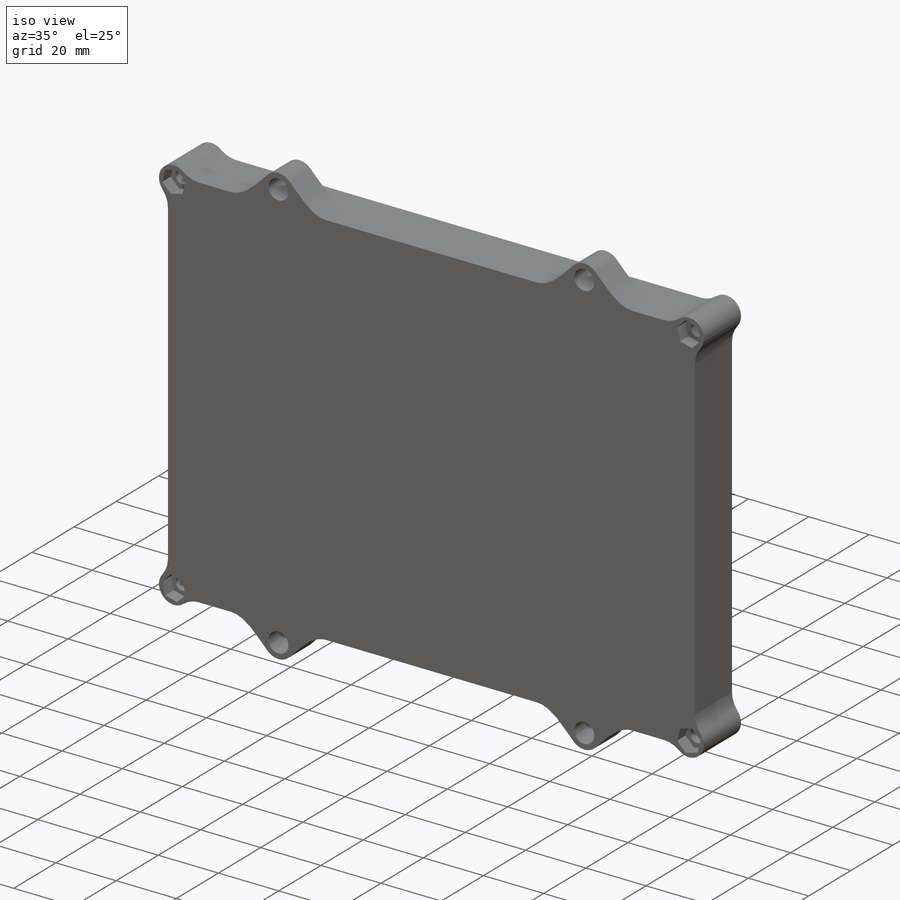
[diagram: iso view]
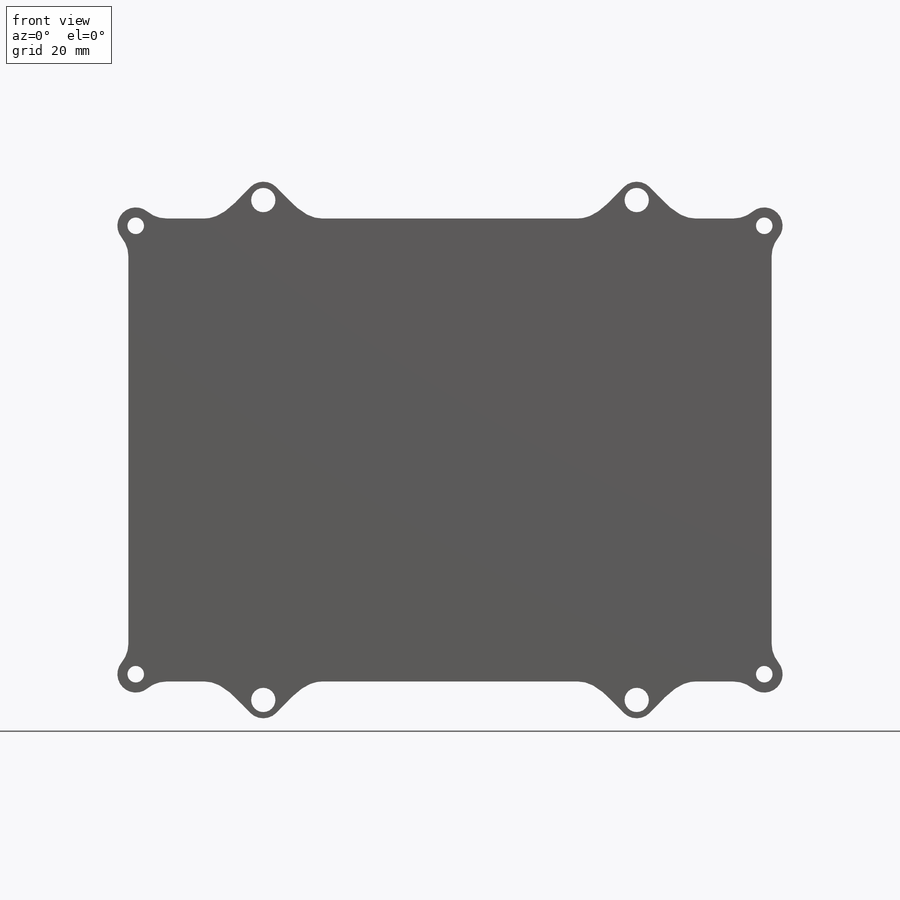
[diagram: front view]
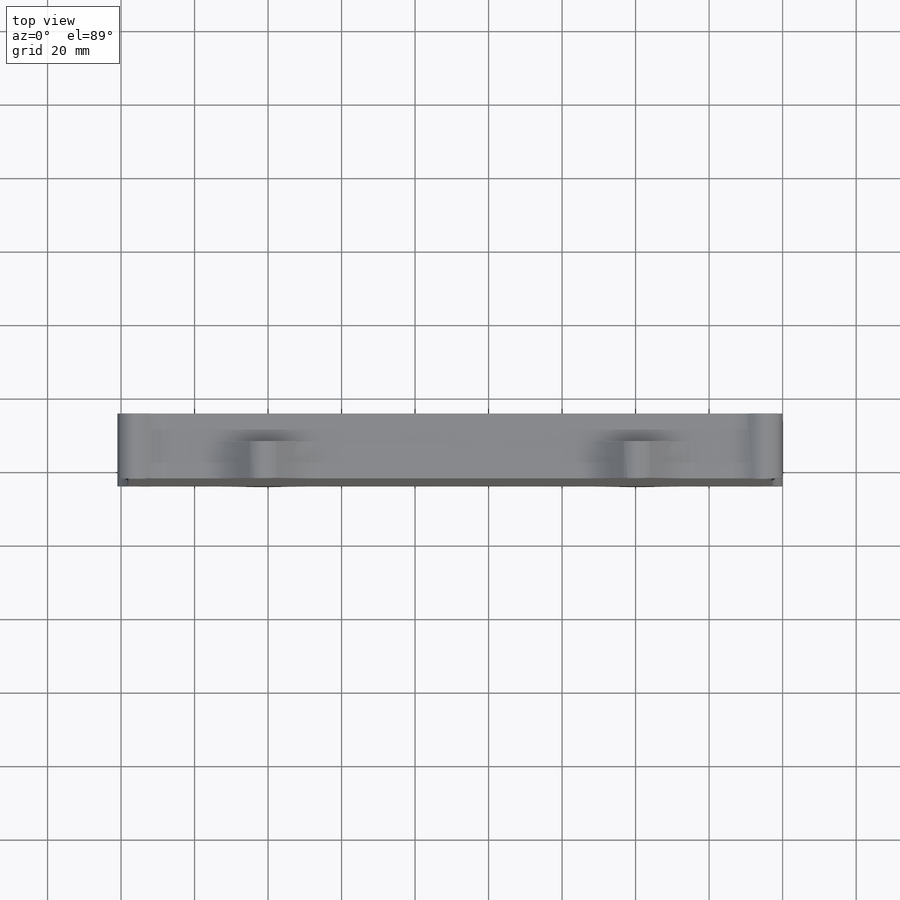
[diagram: top view]
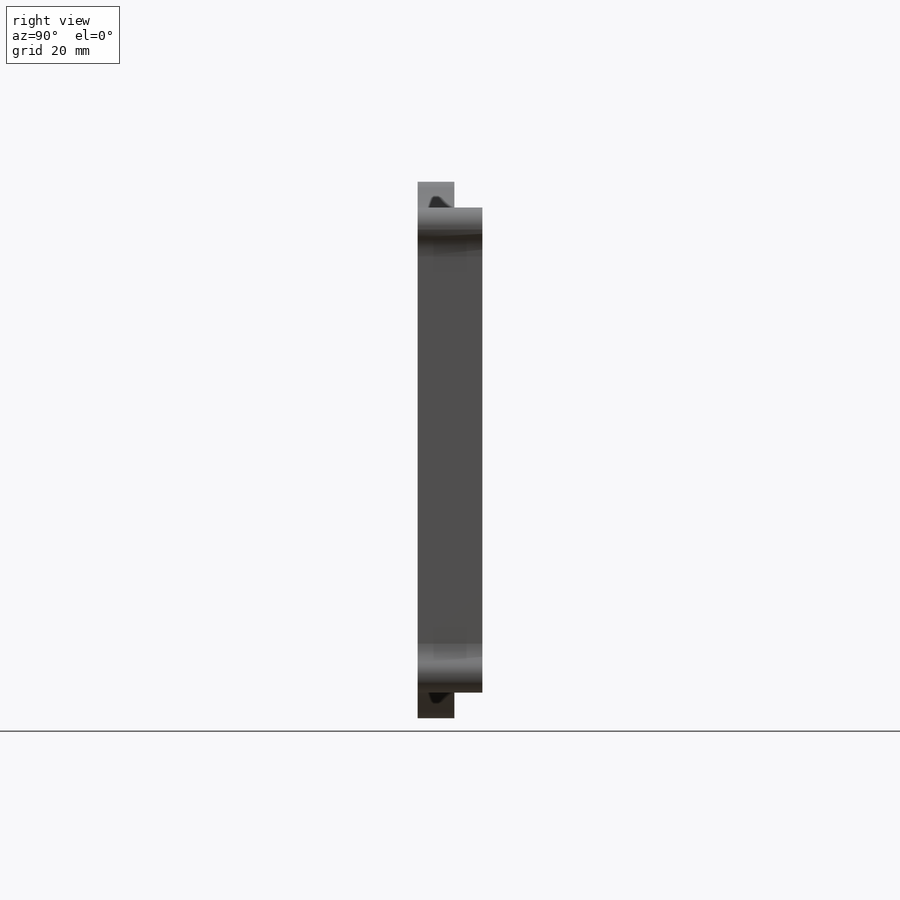
[diagram: right view]
SOLIDWORKS PART (.sldprt)
format: sldprt  version: not decoded by parser v0  size: 556,032 bytes
history: native  units: mm
features: sketch x12, extrude x6, fillet x3, hole x2, material x1, cut_extrude x1 (+11 scaffold rows collapsed)
feature tree (36):
  scaffold x11  (default folders/planes/origin — collapsed)
  material  "Material <not specified>"
  sketch  "Sketch1"  dims[D1=10.0mm]
  extrude  "Boss-Extrude1"  Depth=2mm
  sketch  "Sketch2"  dims[D1=10.0mm]
  extrude  "Boss-Extrude2"  [1 undecoded]
  fillet  "Fillet1"  Radius=2mm
  sketch  "Sketch3"  dims[D2=7.0mm D1=7.0mm]
  extrude  "Boss-Extrude3"  Depth=2mm
  sketch  "Sketch5"  dims[c1.D1=2.0mm c2.D1=2.25mm c2.D5=3.0mm c2.D6=2.54mm c2.D7=5.0mm]
  sketch  "Sketch8"  dims[D1=10.0mm]
  extrude  "Boss-Extrude4"  [1 undecoded]
  fillet  "Fillet2"  Radius=8mm
  sketch  "Sketch9"  dims[D1=3.0mm]
  extrude  "Boss-Extrude5"  Depth=2mm
  hole  "M4 Clearance Hole1"  Diameter=4.5mm Depth=19.05mm
  sketch  "Sketch11"
  sketch  "Sketch10"  dims[hole-wizard template sketch: 47 standard entries collapsed; hole parameters kept: c15.Hole Depth=19.05mm c15.D3=~14.816244mm c15.Drill Angle=118.0deg]
  sketch  "Sketch12"  dims[c1.D1=7.0mm c1.D2=~3.223412mm c2.D2=135.0deg c2.D3=~154.386752mm c3.D3=135.0deg c3.D4=2.25mm c4.D4=135.0deg c4.D5=2.25mm c5.D5=135.0deg c5.D6=7.0mm c5.D7=7.0mm c5.D8=7.0mm]
  cut_extrude  "Cut-Extrude1"  Depth=4mm
  fillet  "Fillet3"  Radius=1mm
  sketch  "Sketch13"  dims[c1.D1=10.0mm c1.D2=45.0deg c2.D2=~3.535534mm c3.D2=90.0deg c3.D3=5.0mm c4.D3=45.0deg c4.D4=31.75mm c4.D5=25.4mm c4.D6=25.4mm]
  extrude  "Boss-Extrude6"  Depth=10mm
  hole  "M6 Clearance Hole2"  Diameter=6.6mm Depth=19.05mm
  sketch  "Sketch17"
  sketch  "Sketch16"  dims[hole-wizard template sketch: 46 standard entries collapsed; hole parameters kept: c15.Hole Dia.=6.6mm c15.Hole Depth=19.05mm c15.D3=~14.816244mm c15.Drill Angle=118.0deg]
decode coverage: 20 of 24 modeling features carry decoded parameters
note: ~ marks probable driven/reference dimensions
note: 2 parameter values undecoded
note: suppression state not decoded; provenance and decode notes live in map.json
